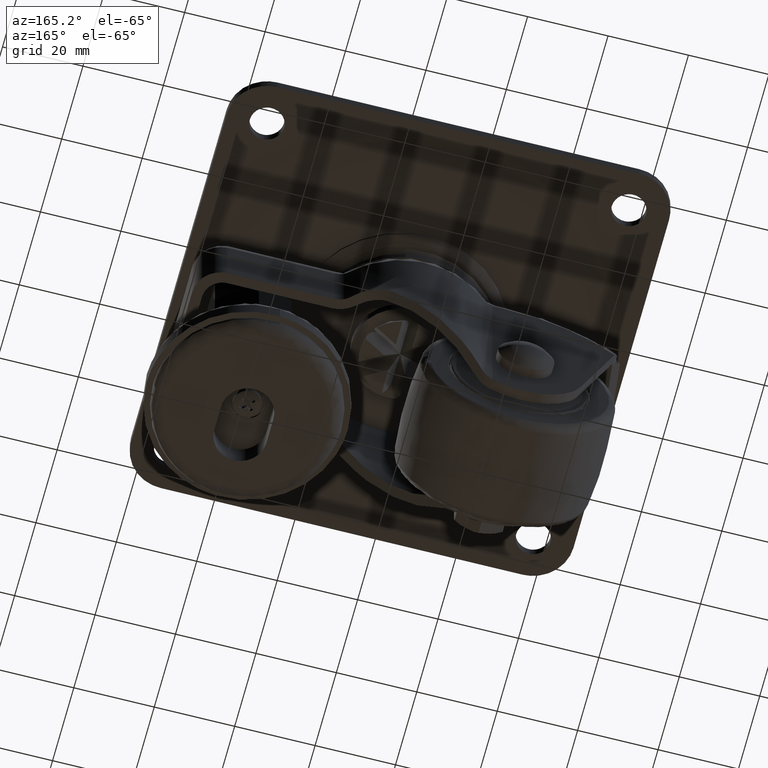
[diagram: clean part render]
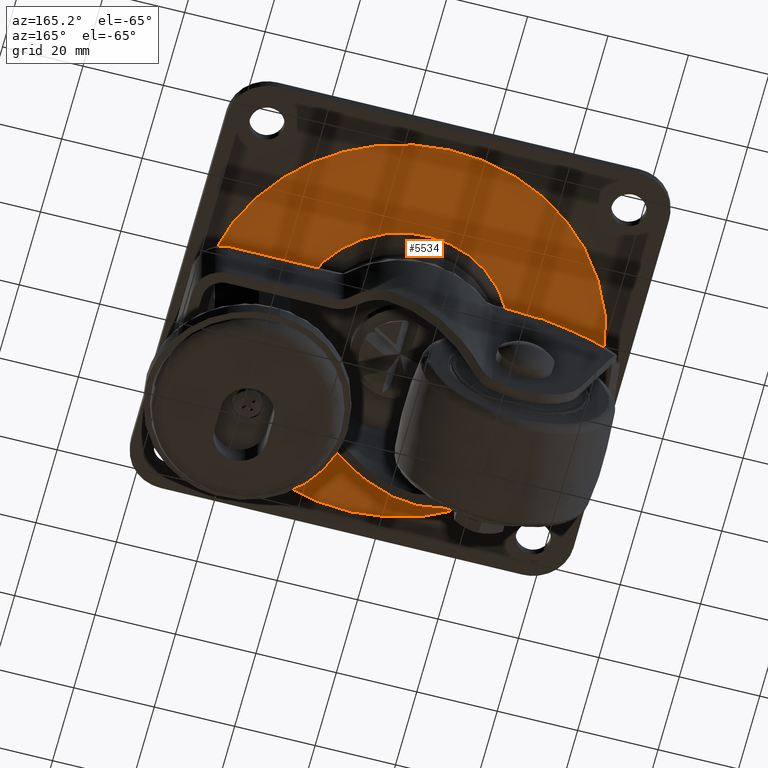
[diagram: same view with one face highlighted and labeled with its STEP entity id]
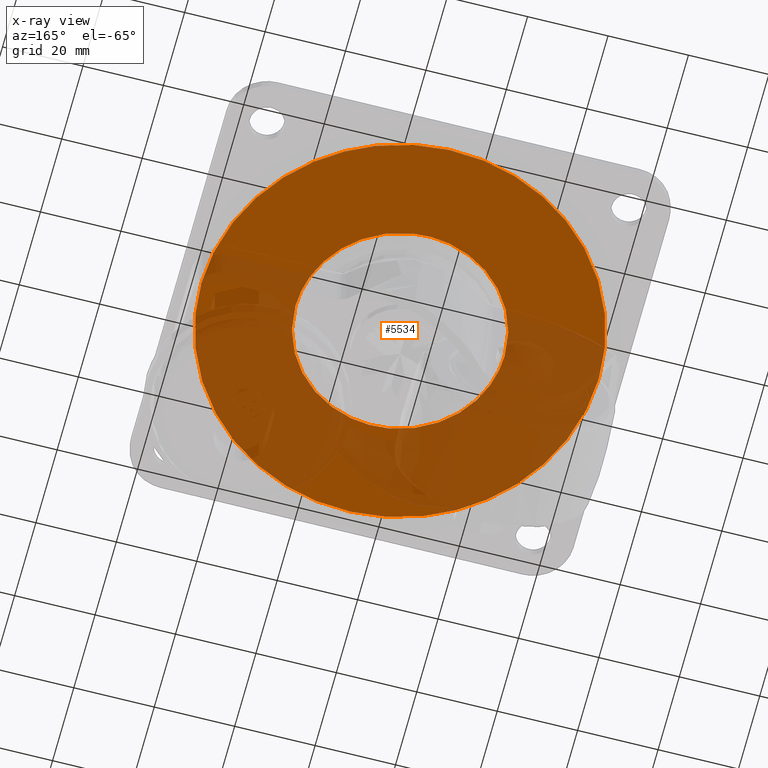
[diagram: x-ray of the same camera — body ghosted, the highlighted face saturated]
A machine part, auxiliary view. The second image highlights one B-rep face of the part: STEP entity #5534.
The next image is the same camera in x-ray: the body ghosted, the highlighted face saturated — about 53% of this face is hidden behind the body in this view.
In plain terms, the highlighted face is a freeform B-spline surface patch.
Its self-contained STEP definition (entity closure, byte-faithful):
#4070=CARTESIAN_POINT('',(3.844274343762451,25.722670365778161,-2.599999999999910));
#4071=VERTEX_POINT('',#4070);
#4077=CARTESIAN_POINT('',(26.008348966757051,0.0,-2.599999999999910));
#4078=VERTEX_POINT('',#4077);
#4079=CARTESIAN_POINT('',(3.844274343762451,25.722670365778161,-2.599999999999910));
#4080=CARTESIAN_POINT('',(26.008348966757048,22.410231096651490,-2.599999999999910));
#4081=CARTESIAN_POINT('',(26.008348966757051,0.0,-2.599999999999910));
#4089=(BOUNDED_CURVE()B_SPLINE_CURVE(2,(#4079,#4080,#4081),.UNSPECIFIED.,.F.,.U.)B_SPLINE_CURVE_WITH_KNOTS((3,3),(0.275488940985447,0.500000000000000),.UNSPECIFIED.)CURVE()GEOMETRIC_REPRESENTATION_ITEM()RATIONAL_B_SPLINE_CURVE((0.946364933260241,0.736968933064043,1.0))REPRESENTATION_ITEM(''));
#4090=EDGE_CURVE('',#4071,#4078,#4089,.T.);
#4092=CARTESIAN_POINT('',(-3.844274343762448,-25.722670365778161,-2.599999999999910));
#4093=VERTEX_POINT('',#4092);
#4094=CARTESIAN_POINT('',(26.008348966757051,0.0,-2.599999999999910));
#4095=CARTESIAN_POINT('',(26.008348966757051,-26.008348966757051,-2.599999999999910));
#4096=CARTESIAN_POINT('',(0.0,-26.008348966757051,-2.599999999999910));
#4097=CARTESIAN_POINT('',(-1.932751953210461,-26.008348966757055,-2.599999999999910));
#4098=CARTESIAN_POINT('',(-3.844274343762510,-25.722670365778551,-2.599999999999910));
#4106=(BOUNDED_CURVE()B_SPLINE_CURVE(2,(#4094,#4095,#4096,#4097,#4098),.UNSPECIFIED.,.F.,.U.)B_SPLINE_CURVE_WITH_KNOTS((3,2,3),(0.500000000000000,0.750000000000000,0.775488940985447),.UNSPECIFIED.)CURVE()GEOMETRIC_REPRESENTATION_ITEM()RATIONAL_B_SPLINE_CURVE((1.0,0.707106781186548,1.0,0.970137848122505,0.946364933260241))REPRESENTATION_ITEM(''));
#4107=EDGE_CURVE('',#4078,#4093,#4106,.T.);
#4141=CARTESIAN_POINT('',(-26.008348966757051,0.0,-2.599999999999910));
#4142=VERTEX_POINT('',#4141);
#4143=CARTESIAN_POINT('',(-3.844274343762449,-25.722670365778161,-2.599999999999910));
#4144=CARTESIAN_POINT('',(-26.008348966757048,-22.410231096651490,-2.599999999999910));
#4145=CARTESIAN_POINT('',(-26.008348966757051,0.0,-2.599999999999910));
#4153=(BOUNDED_CURVE()B_SPLINE_CURVE(2,(#4143,#4144,#4145),.UNSPECIFIED.,.F.,.U.)B_SPLINE_CURVE_WITH_KNOTS((3,3),(0.775488940985447,1.0),.UNSPECIFIED.)CURVE()GEOMETRIC_REPRESENTATION_ITEM()RATIONAL_B_SPLINE_CURVE((0.946364933260241,0.736968933064043,1.0))REPRESENTATION_ITEM(''));
#4154=EDGE_CURVE('',#4093,#4142,#4153,.T.);
#4156=CARTESIAN_POINT('',(-26.008348966757051,0.0,-2.599999999999910));
#4157=CARTESIAN_POINT('',(-26.008348966757051,26.008348966757051,-2.599999999999910));
#4158=CARTESIAN_POINT('',(0.0,26.008348966757051,-2.599999999999910));
#4159=CARTESIAN_POINT('',(1.932751953210461,26.008348966757055,-2.599999999999910));
#4160=CARTESIAN_POINT('',(3.844274343762510,25.722670365778551,-2.599999999999910));
#4168=(BOUNDED_CURVE()B_SPLINE_CURVE(2,(#4156,#4157,#4158,#4159,#4160),.UNSPECIFIED.,.F.,.U.)B_SPLINE_CURVE_WITH_KNOTS((3,2,3),(0.0,0.250000000000000,0.275488940985447),.UNSPECIFIED.)CURVE()GEOMETRIC_REPRESENTATION_ITEM()RATIONAL_B_SPLINE_CURVE((1.0,0.707106781186548,1.0,0.970137848122505,0.946364933260241))REPRESENTATION_ITEM(''));
#4169=EDGE_CURVE('',#4142,#4071,#4168,.T.);
#5457=CARTESIAN_POINT('',(-54.368447272959152,54.364155453374352,-2.599999999999910));
#5458=CARTESIAN_POINT('',(54.368449924610033,54.364155453374352,-2.599999999999910));
#5459=CARTESIAN_POINT('',(-54.368447272959152,-54.364158104815900,-2.599999999999910));
#5460=CARTESIAN_POINT('',(54.368449924610033,-54.364158104815900,-2.599999999999910));
#5461=B_SPLINE_SURFACE_WITH_KNOTS('',1,1,((#5457,#5459),(#5458,#5460)),.UNSPECIFIED.,.F.,.F.,.U.,(2,2),(2,2),(0.0,108.736897197569210),(0.0,108.728313558190290),.UNSPECIFIED.);
#5462=CARTESIAN_POINT('',(-18.196527323447260,-45.959181768177459,-2.600000000004072));
#5463=VERTEX_POINT('',#5462);
#5464=CARTESIAN_POINT('',(49.430355000063997,0.0,-2.599999999999910));
#5465=VERTEX_POINT('',#5464);
#5466=CARTESIAN_POINT('',(-18.196527323447256,-45.959181768177459,-2.600000000004072));
#5467=CARTESIAN_POINT('',(-9.429344515551291,-49.430355000072680,-2.600000000003803));
#5468=CARTESIAN_POINT('',(-3.085009E-012,-49.430355000071792,-2.600000000003405));
#5469=CARTESIAN_POINT('',(49.430355000062747,-49.430355000067145,-2.600000000001325));
#5470=CARTESIAN_POINT('',(49.430355000063997,0.0,-2.599999999999910));
#5478=(BOUNDED_CURVE()B_SPLINE_CURVE(2,(#5466,#5467,#5468,#5469,#5470),.UNSPECIFIED.,.F.,.U.)B_SPLINE_CURVE_WITH_KNOTS((3,2,3),(0.374989898472593,0.500000000000000,1.0),.UNSPECIFIED.)CURVE()GEOMETRIC_REPRESENTATION_ITEM()RATIONAL_B_SPLINE_CURVE((0.890159125846298,0.926770777958882,1.0,0.707106781186547,1.0))REPRESENTATION_ITEM(''));
#5479=EDGE_CURVE('',#5463,#5465,#5478,.T.);
#5480=ORIENTED_EDGE('',*,*,#5479,.F.);
#5481=CARTESIAN_POINT('',(-49.430355000063997,0.0,-2.599999999999915));
#5482=VERTEX_POINT('',#5481);
#5483=CARTESIAN_POINT('',(-49.430355000063997,0.0,-2.599999999999915));
#5484=CARTESIAN_POINT('',(-49.430355000065830,-33.592834569037201,-2.600000000001994));
#5485=CARTESIAN_POINT('',(-18.196527323447256,-45.959181768177459,-2.600000000004072));
#5493=(BOUNDED_CURVE()B_SPLINE_CURVE(2,(#5483,#5484,#5485),.UNSPECIFIED.,.F.,.U.)B_SPLINE_CURVE_WITH_KNOTS((3,3),(0.0,0.374989898472593),.UNSPECIFIED.)CURVE()GEOMETRIC_REPRESENTATION_ITEM()RATIONAL_B_SPLINE_CURVE((1.0,0.780336003227665,0.890159125846298))REPRESENTATION_ITEM(''));
#5494=EDGE_CURVE('',#5482,#5463,#5493,.T.);
#5495=ORIENTED_EDGE('',*,*,#5494,.F.);
#5496=CARTESIAN_POINT('',(18.196527323447270,45.959181768177459,-2.600000000004071));
#5497=VERTEX_POINT('',#5496);
#5498=CARTESIAN_POINT('',(18.196527323447270,45.959181768177459,-2.600000000004071));
#5499=CARTESIAN_POINT('',(9.429344515551295,49.430355000072673,-2.600000000003802));
#5500=CARTESIAN_POINT('',(3.085009E-012,49.430355000071792,-2.600000000003405));
#5501=CARTESIAN_POINT('',(-49.430355000062747,49.430355000067145,-2.600000000001328));
#5502=CARTESIAN_POINT('',(-49.430355000063997,0.0,-2.599999999999915));
#5510=(BOUNDED_CURVE()B_SPLINE_CURVE(2,(#5498,#5499,#5500,#5501,#5502),.UNSPECIFIED.,.F.,.U.)B_SPLINE_CURVE_WITH_KNOTS((3,2,3),(0.374989898472593,0.500000000000000,1.0),.UNSPECIFIED.)CURVE()GEOMETRIC_REPRESENTATION_ITEM()RATIONAL_B_SPLINE_CURVE((0.890159125846297,0.926770777958882,1.0,0.707106781186547,1.0))REPRESENTATION_ITEM(''));
#5511=EDGE_CURVE('',#5497,#5482,#5510,.T.);
#5512=ORIENTED_EDGE('',*,*,#5511,.F.);
#5513=CARTESIAN_POINT('',(49.430355000063997,0.0,-2.599999999999910));
#5514=CARTESIAN_POINT('',(49.430355000065845,33.592834569037187,-2.600000000001991));
#5515=CARTESIAN_POINT('',(18.196527323447270,45.959181768177459,-2.600000000004071));
#5523=(BOUNDED_CURVE()B_SPLINE_CURVE(2,(#5513,#5514,#5515),.UNSPECIFIED.,.F.,.U.)B_SPLINE_CURVE_WITH_KNOTS((3,3),(0.0,0.374989898472593),.UNSPECIFIED.)CURVE()GEOMETRIC_REPRESENTATION_ITEM()RATIONAL_B_SPLINE_CURVE((1.0,0.780336003227665,0.890159125846297))REPRESENTATION_ITEM(''));
#5524=EDGE_CURVE('',#5465,#5497,#5523,.T.);
#5525=ORIENTED_EDGE('',*,*,#5524,.F.);
#5526=EDGE_LOOP('',(#5480,#5495,#5512,#5525));
#5527=FACE_OUTER_BOUND('',#5526,.T.);
#5528=ORIENTED_EDGE('',*,*,#4107,.F.);
#5529=ORIENTED_EDGE('',*,*,#4090,.F.);
#5530=ORIENTED_EDGE('',*,*,#4169,.F.);
#5531=ORIENTED_EDGE('',*,*,#4154,.F.);
#5532=EDGE_LOOP('',(#5528,#5529,#5530,#5531));
#5533=FACE_BOUND('',#5532,.T.);
#5534=ADVANCED_FACE('',(#5527,#5533),#5461,.T.);